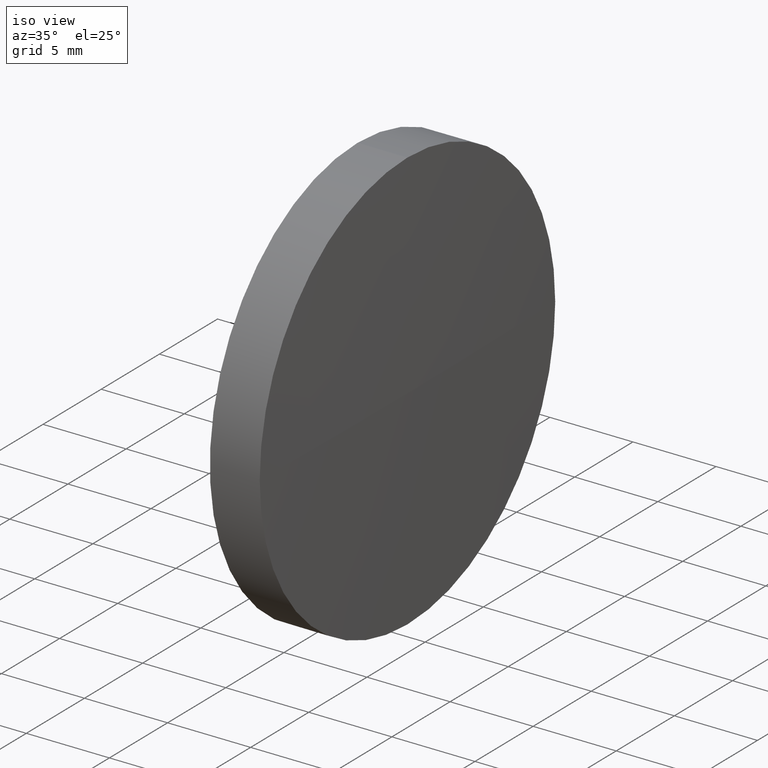
[diagram: clean part render]
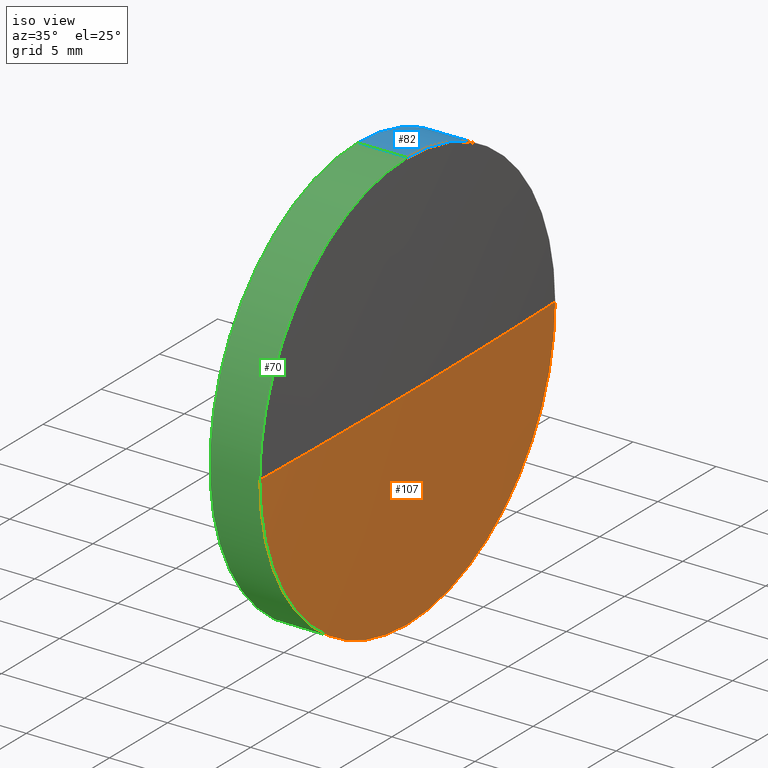
[diagram: same view with three faces highlighted in distinct colors, each labeled with its STEP entity id]
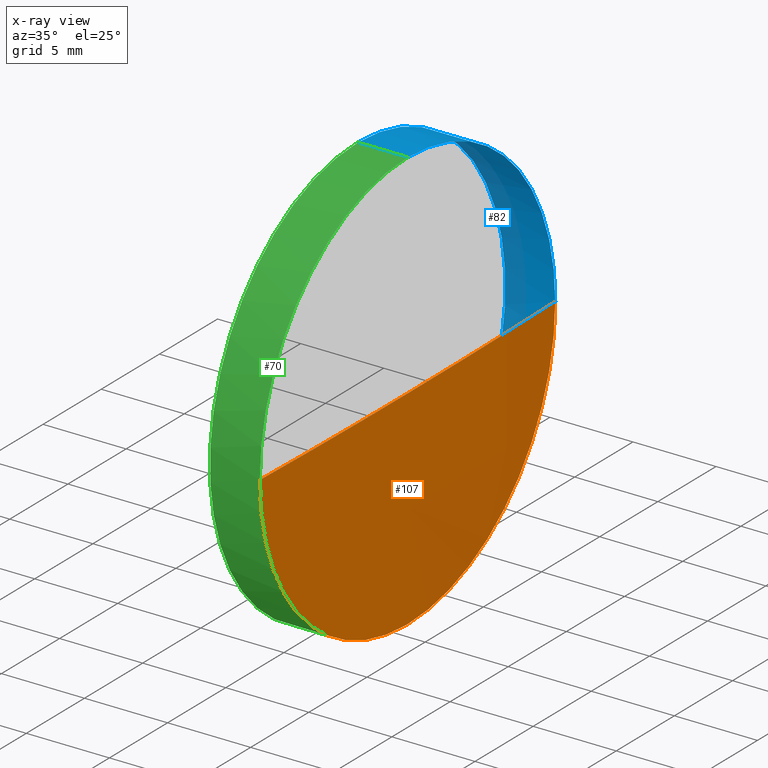
[diagram: x-ray of the same camera — body ghosted, the three highlighted faces saturated]
A machine part, iso view with three faces highlighted in distinct colors.
The next image is the same camera in x-ray (body ghosted, the three faces saturated) — at least one of them is partly hidden behind the body in this view.
Their STEP definitions:

[orange] entity #107 — the highlighted spherical surface has radius 459 mm.
#2 = EDGE_LOOP ( 'NONE', ( #55, #157, #121, #186 ) ) ;
#6 = VERTEX_POINT ( 'NONE', #132 ) ;
#7 = CIRCLE ( 'NONE', #59, 459.0000000000000000 ) ;
#8 = EDGE_CURVE ( 'NONE', #30, #49, #161, .T. ) ;
#13 = DIRECTION ( 'NONE',  ( 0.0000000000000000000, 1.224646799147353200E-016, -1.000000000000000000 ) ) ;
#14 = CARTESIAN_POINT ( 'NONE',  ( -340.0503935691618800, 65.23355492641219700, 0.0000000000000000000 ) ) ;
#16 = CARTESIAN_POINT ( 'NONE',  ( -340.0503935691618800, 65.23355492641219700, 0.0000000000000000000 ) ) ;
#19 = DIRECTION ( 'NONE',  ( 0.0000000000000000000, 0.0000000000000000000, 1.000000000000000000 ) ) ;
#29 = CARTESIAN_POINT ( 'NONE',  ( 118.7738756233035200, 65.23355492641219700, -12.70000000000000300 ) ) ;
#30 = VERTEX_POINT ( 'NONE', #90 ) ;
#33 = DIRECTION ( 'NONE',  ( 0.0000000000000000000, 1.000000000000000000, 1.224646799147353200E-016 ) ) ;
#41 = DIRECTION ( 'NONE',  ( -0.0000000000000000000, 0.0000000000000000000, -1.000000000000000000 ) ) ;
#49 = VERTEX_POINT ( 'NONE', #104 ) ;
#52 = SPHERICAL_SURFACE ( 'NONE', #147, 459.0000000000000000 ) ;
#55 = ORIENTED_EDGE ( 'NONE', *, *, #8, .F. ) ;
#59 = AXIS2_PLACEMENT_3D ( 'NONE', #14, #13, #33 ) ;
#66 = FACE_OUTER_BOUND ( 'NONE', #2, .T. ) ;
#68 = CARTESIAN_POINT ( 'NONE',  ( 118.7738756233035200, 65.23355492641219700, 0.0000000000000000000 ) ) ;
#78 = CARTESIAN_POINT ( 'NONE',  ( 118.7738756233035200, 65.23355492641219700, 0.0000000000000000000 ) ) ;
#84 = DIRECTION ( 'NONE',  ( -1.000000000000000000, -0.0000000000000000000, -0.0000000000000000000 ) ) ;
#90 = CARTESIAN_POINT ( 'NONE',  ( 118.9496064308381300, 65.23355492641222500, 0.0000000000000000000 ) ) ;
#94 = DIRECTION ( 'NONE',  ( 0.0000000000000000000, 0.0000000000000000000, 1.000000000000000000 ) ) ;
#96 = AXIS2_PLACEMENT_3D ( 'NONE', #78, #84, #94 ) ;
#104 = CARTESIAN_POINT ( 'NONE',  ( 118.7738756233035700, 77.93355492641237000, 0.0000000000000000000 ) ) ;
#107 = ADVANCED_FACE ( 'NONE', ( #66 ), #52, .T. ) ;
#112 = VERTEX_POINT ( 'NONE', #29 ) ;
#114 = AXIS2_PLACEMENT_3D ( 'NONE', #149, #133, #163 ) ;
#121 = ORIENTED_EDGE ( 'NONE', *, *, #169, .F. ) ;
#123 = CIRCLE ( 'NONE', #96, 12.70000000000000300 ) ;
#128 = EDGE_CURVE ( 'NONE', #30, #6, #7, .T. ) ;
#130 = AXIS2_PLACEMENT_3D ( 'NONE', #68, #151, #19 ) ;
#132 = CARTESIAN_POINT ( 'NONE',  ( 118.7738756233035700, 52.53355492641202300, -1.555301434917158900E-015 ) ) ;
#133 = DIRECTION ( 'NONE',  ( -0.0000000000000000000, 0.0000000000000000000, 1.000000000000000000 ) ) ;
#137 = DIRECTION ( 'NONE',  ( 0.0000000000000000000, 1.000000000000000000, 0.0000000000000000000 ) ) ;
#143 = CIRCLE ( 'NONE', #130, 12.70000000000000300 ) ;
#147 = AXIS2_PLACEMENT_3D ( 'NONE', #16, #41, #137 ) ;
#149 = CARTESIAN_POINT ( 'NONE',  ( -340.0503935691618800, 65.23355492641219700, 0.0000000000000000000 ) ) ;
#151 = DIRECTION ( 'NONE',  ( -1.000000000000000000, -0.0000000000000000000, -0.0000000000000000000 ) ) ;
#157 = ORIENTED_EDGE ( 'NONE', *, *, #128, .T. ) ;
#161 = CIRCLE ( 'NONE', #114, 459.0000000000000000 ) ;
#163 = DIRECTION ( 'NONE',  ( 1.000000000000000000, 0.0000000000000000000, 0.0000000000000000000 ) ) ;
#169 = EDGE_CURVE ( 'NONE', #112, #6, #143, .T. ) ;
#170 = EDGE_CURVE ( 'NONE', #49, #112, #123, .T. ) ;
#186 = ORIENTED_EDGE ( 'NONE', *, *, #170, .F. ) ;

[blue] entity #82 — the highlighted cylindrical surface (partial cylindrical patch) has radius 12.7 mm, axis along (-1, -0, -0).
#3 = EDGE_CURVE ( 'NONE', #47, #46, #42, .T. ) ;
#15 = CIRCLE ( 'NONE', #22, 12.70000000000000300 ) ;
#21 = VECTOR ( 'NONE', #43, 1000.000000000000000 ) ;
#22 = AXIS2_PLACEMENT_3D ( 'NONE', #176, #35, #37 ) ;
#24 = EDGE_CURVE ( 'NONE', #75, #49, #15, .T. ) ;
#29 = CARTESIAN_POINT ( 'NONE',  ( 118.7738756233035200, 65.23355492641219700, -12.70000000000000300 ) ) ;
#35 = DIRECTION ( 'NONE',  ( -1.000000000000000000, -0.0000000000000000000, -0.0000000000000000000 ) ) ;
#36 = CARTESIAN_POINT ( 'NONE',  ( 115.7736064308381300, 65.23355492641219700, 12.70000000000000300 ) ) ;
#37 = DIRECTION ( 'NONE',  ( 0.0000000000000000000, 0.0000000000000000000, 1.000000000000000000 ) ) ;
#38 = CARTESIAN_POINT ( 'NONE',  ( 115.7736064308381300, 65.23355492641219700, 0.0000000000000000000 ) ) ;
#39 = ORIENTED_EDGE ( 'NONE', *, *, #173, .F. ) ;
#40 = DIRECTION ( 'NONE',  ( 0.0000000000000000000, 0.0000000000000000000, 1.000000000000000000 ) ) ;
#42 = CIRCLE ( 'NONE', #154, 12.70000000000000300 ) ;
#43 = DIRECTION ( 'NONE',  ( -1.000000000000000000, -0.0000000000000000000, -0.0000000000000000000 ) ) ;
#44 = DIRECTION ( 'NONE',  ( -1.000000000000000000, -0.0000000000000000000, -0.0000000000000000000 ) ) ;
#46 = VERTEX_POINT ( 'NONE', #119 ) ;
#47 = VERTEX_POINT ( 'NONE', #36 ) ;
#48 = ORIENTED_EDGE ( 'NONE', *, *, #3, .F. ) ;
#49 = VERTEX_POINT ( 'NONE', #104 ) ;
#51 = CARTESIAN_POINT ( 'NONE',  ( 118.7738756233035200, 65.23355492641219700, 12.70000000000000300 ) ) ;
#53 = DIRECTION ( 'NONE',  ( -1.000000000000000000, -0.0000000000000000000, -0.0000000000000000000 ) ) ;
#54 = DIRECTION ( 'NONE',  ( 0.0000000000000000000, 0.0000000000000000000, 1.000000000000000000 ) ) ;
#61 = LINE ( 'NONE', #95, #21 ) ;
#74 = ORIENTED_EDGE ( 'NONE', *, *, #170, .T. ) ;
#75 = VERTEX_POINT ( 'NONE', #51 ) ;
#77 = FACE_OUTER_BOUND ( 'NONE', #127, .T. ) ;
#78 = CARTESIAN_POINT ( 'NONE',  ( 118.7738756233035200, 65.23355492641219700, 0.0000000000000000000 ) ) ;
#80 = CARTESIAN_POINT ( 'NONE',  ( 110.1653732284884500, 65.23355492641219700, 12.70000000000000300 ) ) ;
#82 = ADVANCED_FACE ( 'NONE', ( #77 ), #102, .T. ) ;
#83 = AXIS2_PLACEMENT_3D ( 'NONE', #118, #53, #40 ) ;
#84 = DIRECTION ( 'NONE',  ( -1.000000000000000000, -0.0000000000000000000, -0.0000000000000000000 ) ) ;
#89 = LINE ( 'NONE', #80, #152 ) ;
#91 = ORIENTED_EDGE ( 'NONE', *, *, #24, .T. ) ;
#94 = DIRECTION ( 'NONE',  ( 0.0000000000000000000, 0.0000000000000000000, 1.000000000000000000 ) ) ;
#95 = CARTESIAN_POINT ( 'NONE',  ( 110.1653732284884500, 65.23355492641219700, -12.70000000000000300 ) ) ;
#96 = AXIS2_PLACEMENT_3D ( 'NONE', #78, #84, #94 ) ;
#102 = CYLINDRICAL_SURFACE ( 'NONE', #83, 12.70000000000000300 ) ;
#104 = CARTESIAN_POINT ( 'NONE',  ( 118.7738756233035700, 77.93355492641237000, 0.0000000000000000000 ) ) ;
#112 = VERTEX_POINT ( 'NONE', #29 ) ;
#118 = CARTESIAN_POINT ( 'NONE',  ( 110.1653732284884500, 65.23355492641219700, 0.0000000000000000000 ) ) ;
#119 = CARTESIAN_POINT ( 'NONE',  ( 115.7736064308381300, 65.23355492641219700, -12.70000000000000300 ) ) ;
#123 = CIRCLE ( 'NONE', #96, 12.70000000000000300 ) ;
#127 = EDGE_LOOP ( 'NONE', ( #74, #164, #48, #39, #91 ) ) ;
#134 = EDGE_CURVE ( 'NONE', #112, #46, #61, .T. ) ;
#152 = VECTOR ( 'NONE', #44, 1000.000000000000000 ) ;
#154 = AXIS2_PLACEMENT_3D ( 'NONE', #38, #177, #54 ) ;
#164 = ORIENTED_EDGE ( 'NONE', *, *, #134, .T. ) ;
#170 = EDGE_CURVE ( 'NONE', #49, #112, #123, .T. ) ;
#173 = EDGE_CURVE ( 'NONE', #75, #47, #89, .T. ) ;
#176 = CARTESIAN_POINT ( 'NONE',  ( 118.7738756233035200, 65.23355492641219700, 0.0000000000000000000 ) ) ;
#177 = DIRECTION ( 'NONE',  ( -1.000000000000000000, -0.0000000000000000000, -0.0000000000000000000 ) ) ;

[green] entity #70 — the highlighted cylindrical surface (partial cylindrical patch) has radius 12.7 mm, axis along (-1, -0, -0).
#5 = ORIENTED_EDGE ( 'NONE', *, *, #173, .T. ) ;
#6 = VERTEX_POINT ( 'NONE', #132 ) ;
#10 = ORIENTED_EDGE ( 'NONE', *, *, #72, .T. ) ;
#12 = CARTESIAN_POINT ( 'NONE',  ( 110.1653732284884500, 65.23355492641219700, 0.0000000000000000000 ) ) ;
#19 = DIRECTION ( 'NONE',  ( 0.0000000000000000000, 0.0000000000000000000, 1.000000000000000000 ) ) ;
#21 = VECTOR ( 'NONE', #43, 1000.000000000000000 ) ;
#27 = ORIENTED_EDGE ( 'NONE', *, *, #169, .T. ) ;
#29 = CARTESIAN_POINT ( 'NONE',  ( 118.7738756233035200, 65.23355492641219700, -12.70000000000000300 ) ) ;
#31 = DIRECTION ( 'NONE',  ( -1.000000000000000000, -0.0000000000000000000, -0.0000000000000000000 ) ) ;
#36 = CARTESIAN_POINT ( 'NONE',  ( 115.7736064308381300, 65.23355492641219700, 12.70000000000000300 ) ) ;
#43 = DIRECTION ( 'NONE',  ( -1.000000000000000000, -0.0000000000000000000, -0.0000000000000000000 ) ) ;
#44 = DIRECTION ( 'NONE',  ( -1.000000000000000000, -0.0000000000000000000, -0.0000000000000000000 ) ) ;
#46 = VERTEX_POINT ( 'NONE', #119 ) ;
#47 = VERTEX_POINT ( 'NONE', #36 ) ;
#51 = CARTESIAN_POINT ( 'NONE',  ( 118.7738756233035200, 65.23355492641219700, 12.70000000000000300 ) ) ;
#61 = LINE ( 'NONE', #95, #21 ) ;
#67 = CARTESIAN_POINT ( 'NONE',  ( 115.7736064308381300, 65.23355492641219700, 0.0000000000000000000 ) ) ;
#68 = CARTESIAN_POINT ( 'NONE',  ( 118.7738756233035200, 65.23355492641219700, 0.0000000000000000000 ) ) ;
#70 = ADVANCED_FACE ( 'NONE', ( #85 ), #115, .T. ) ;
#72 = EDGE_CURVE ( 'NONE', #6, #75, #108, .T. ) ;
#73 = EDGE_LOOP ( 'NONE', ( #180, #27, #10, #5, #103 ) ) ;
#75 = VERTEX_POINT ( 'NONE', #51 ) ;
#76 = CARTESIAN_POINT ( 'NONE',  ( 118.7738756233035200, 65.23355492641219700, 0.0000000000000000000 ) ) ;
#80 = CARTESIAN_POINT ( 'NONE',  ( 110.1653732284884500, 65.23355492641219700, 12.70000000000000300 ) ) ;
#81 = DIRECTION ( 'NONE',  ( 0.0000000000000000000, 0.0000000000000000000, 1.000000000000000000 ) ) ;
#85 = FACE_OUTER_BOUND ( 'NONE', #73, .T. ) ;
#89 = LINE ( 'NONE', #80, #152 ) ;
#92 = DIRECTION ( 'NONE',  ( 0.0000000000000000000, 0.0000000000000000000, 1.000000000000000000 ) ) ;
#95 = CARTESIAN_POINT ( 'NONE',  ( 110.1653732284884500, 65.23355492641219700, -12.70000000000000300 ) ) ;
#103 = ORIENTED_EDGE ( 'NONE', *, *, #185, .F. ) ;
#105 = DIRECTION ( 'NONE',  ( 0.0000000000000000000, 0.0000000000000000000, 1.000000000000000000 ) ) ;
#108 = CIRCLE ( 'NONE', #111, 12.70000000000000300 ) ;
#111 = AXIS2_PLACEMENT_3D ( 'NONE', #76, #148, #92 ) ;
#112 = VERTEX_POINT ( 'NONE', #29 ) ;
#115 = CYLINDRICAL_SURFACE ( 'NONE', #183, 12.70000000000000300 ) ;
#119 = CARTESIAN_POINT ( 'NONE',  ( 115.7736064308381300, 65.23355492641219700, -12.70000000000000300 ) ) ;
#130 = AXIS2_PLACEMENT_3D ( 'NONE', #68, #151, #19 ) ;
#132 = CARTESIAN_POINT ( 'NONE',  ( 118.7738756233035700, 52.53355492641202300, -1.555301434917158900E-015 ) ) ;
#134 = EDGE_CURVE ( 'NONE', #112, #46, #61, .T. ) ;
#142 = AXIS2_PLACEMENT_3D ( 'NONE', #67, #166, #81 ) ;
#143 = CIRCLE ( 'NONE', #130, 12.70000000000000300 ) ;
#148 = DIRECTION ( 'NONE',  ( -1.000000000000000000, -0.0000000000000000000, -0.0000000000000000000 ) ) ;
#151 = DIRECTION ( 'NONE',  ( -1.000000000000000000, -0.0000000000000000000, -0.0000000000000000000 ) ) ;
#152 = VECTOR ( 'NONE', #44, 1000.000000000000000 ) ;
#158 = CIRCLE ( 'NONE', #142, 12.70000000000000300 ) ;
#166 = DIRECTION ( 'NONE',  ( -1.000000000000000000, -0.0000000000000000000, -0.0000000000000000000 ) ) ;
#169 = EDGE_CURVE ( 'NONE', #112, #6, #143, .T. ) ;
#173 = EDGE_CURVE ( 'NONE', #75, #47, #89, .T. ) ;
#180 = ORIENTED_EDGE ( 'NONE', *, *, #134, .F. ) ;
#183 = AXIS2_PLACEMENT_3D ( 'NONE', #12, #31, #105 ) ;
#185 = EDGE_CURVE ( 'NONE', #46, #47, #158, .T. ) ;